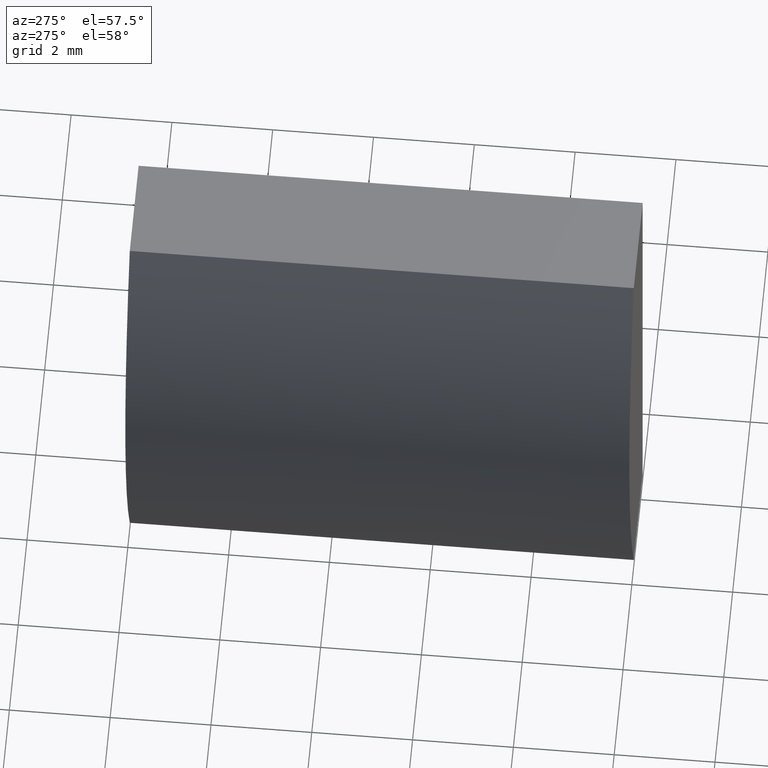
[diagram: clean part render]
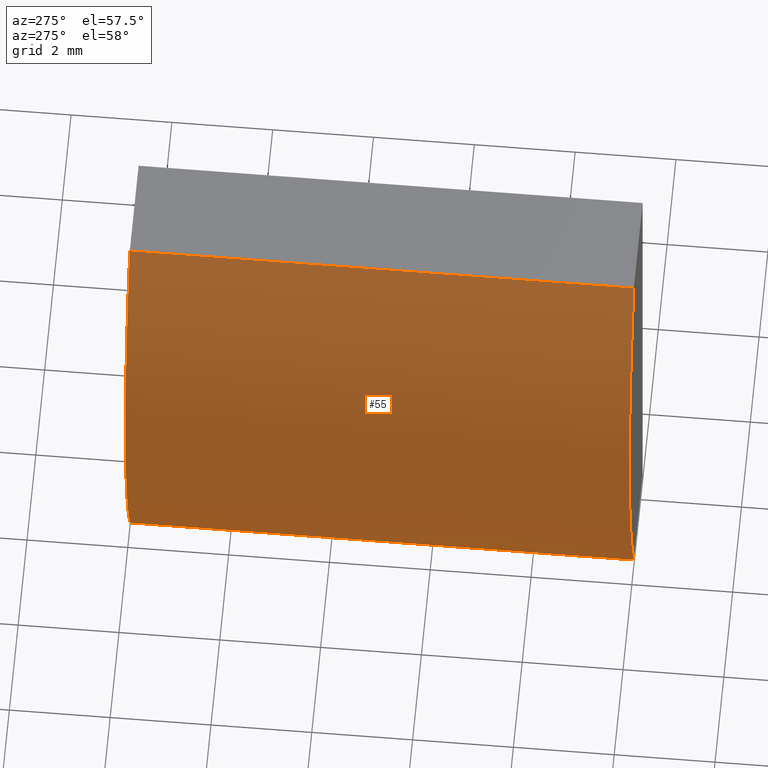
[diagram: same view with one face highlighted and labeled with its STEP entity id]
A machine part, auxiliary view. The second image highlights one B-rep face of the part: STEP entity #55.
In plain terms, the highlighted cylindrical surface (partial cylindrical patch) has radius 12.92 mm, axis along (-0, -1, -0).
Its self-contained STEP definition (entity closure, byte-faithful):
#8 = CARTESIAN_POINT ( 'NONE',  ( -7.558082365299958900, 0.0000000000000000000, 5.000000000000000000 ) ) ;
#11 = FACE_OUTER_BOUND ( 'NONE', #35, .T. ) ;
#18 = DIRECTION ( 'NONE',  ( -0.0000000000000000000, -1.000000000000000000, -0.0000000000000000000 ) ) ;
#22 = CARTESIAN_POINT ( 'NONE',  ( -7.558082365299958900, 0.0000000000000000000, -5.000000000000000000 ) ) ;
#34 = CARTESIAN_POINT ( 'NONE',  ( 4.355204334851265500, 10.00000000000000000, 4.286263797015675000E-017 ) ) ;
#35 = EDGE_LOOP ( 'NONE', ( #196, #185, #170, #162 ) ) ;
#36 = VECTOR ( 'NONE', #18, 1000.000000000000000 ) ;
#41 = AXIS2_PLACEMENT_3D ( 'NONE', #34, #99, #52 ) ;
#42 = VERTEX_POINT ( 'NONE', #191 ) ;
#43 = VERTEX_POINT ( 'NONE', #8 ) ;
#52 = DIRECTION ( 'NONE',  ( 0.0000000000000000000, 0.0000000000000000000, -1.000000000000000000 ) ) ;
#55 = ADVANCED_FACE ( 'NONE', ( #11 ), #193, .T. ) ;
#69 = LINE ( 'NONE', #183, #36 ) ;
#79 = CIRCLE ( 'NONE', #149, 12.92000000000000300 ) ;
#85 = CARTESIAN_POINT ( 'NONE',  ( -7.558082365299958900, 10.00000000000000000, -5.000000000000000000 ) ) ;
#96 = DIRECTION ( 'NONE',  ( 0.0000000000000000000, 0.0000000000000000000, 1.000000000000000000 ) ) ;
#99 = DIRECTION ( 'NONE',  ( -0.0000000000000000000, -1.000000000000000000, -0.0000000000000000000 ) ) ;
#107 = CARTESIAN_POINT ( 'NONE',  ( 4.355204334851265500, 0.0000000000000000000, 4.286263797015675000E-017 ) ) ;
#115 = DIRECTION ( 'NONE',  ( 0.0000000000000000000, 1.000000000000000000, 0.0000000000000000000 ) ) ;
#117 = LINE ( 'NONE', #155, #180 ) ;
#143 = EDGE_CURVE ( 'NONE', #164, #42, #200, .T. ) ;
#146 = AXIS2_PLACEMENT_3D ( 'NONE', #169, #148, #150 ) ;
#148 = DIRECTION ( 'NONE',  ( 0.0000000000000000000, 1.000000000000000000, 0.0000000000000000000 ) ) ;
#149 = AXIS2_PLACEMENT_3D ( 'NONE', #107, #115, #96 ) ;
#150 = DIRECTION ( 'NONE',  ( 0.0000000000000000000, 0.0000000000000000000, 1.000000000000000000 ) ) ;
#155 = CARTESIAN_POINT ( 'NONE',  ( -7.558082365299958900, 10.00000000000000000, 5.000000000000000000 ) ) ;
#157 = VERTEX_POINT ( 'NONE', #22 ) ;
#162 = ORIENTED_EDGE ( 'NONE', *, *, #192, .T. ) ;
#164 = VERTEX_POINT ( 'NONE', #85 ) ;
#169 = CARTESIAN_POINT ( 'NONE',  ( 4.355204334851265500, 10.00000000000000000, 4.286263797015675000E-017 ) ) ;
#170 = ORIENTED_EDGE ( 'NONE', *, *, #143, .F. ) ;
#180 = VECTOR ( 'NONE', #198, 1000.000000000000000 ) ;
#183 = CARTESIAN_POINT ( 'NONE',  ( -7.558082365299958900, 10.00000000000000000, -5.000000000000000000 ) ) ;
#185 = ORIENTED_EDGE ( 'NONE', *, *, #195, .F. ) ;
#188 = EDGE_CURVE ( 'NONE', #157, #43, #79, .T. ) ;
#191 = CARTESIAN_POINT ( 'NONE',  ( -7.558082365299958900, 10.00000000000000000, 5.000000000000000000 ) ) ;
#192 = EDGE_CURVE ( 'NONE', #164, #157, #69, .T. ) ;
#193 = CYLINDRICAL_SURFACE ( 'NONE', #41, 12.92000000000000300 ) ;
#195 = EDGE_CURVE ( 'NONE', #42, #43, #117, .T. ) ;
#196 = ORIENTED_EDGE ( 'NONE', *, *, #188, .T. ) ;
#198 = DIRECTION ( 'NONE',  ( -0.0000000000000000000, -1.000000000000000000, -0.0000000000000000000 ) ) ;
#200 = CIRCLE ( 'NONE', #146, 12.92000000000000300 ) ;